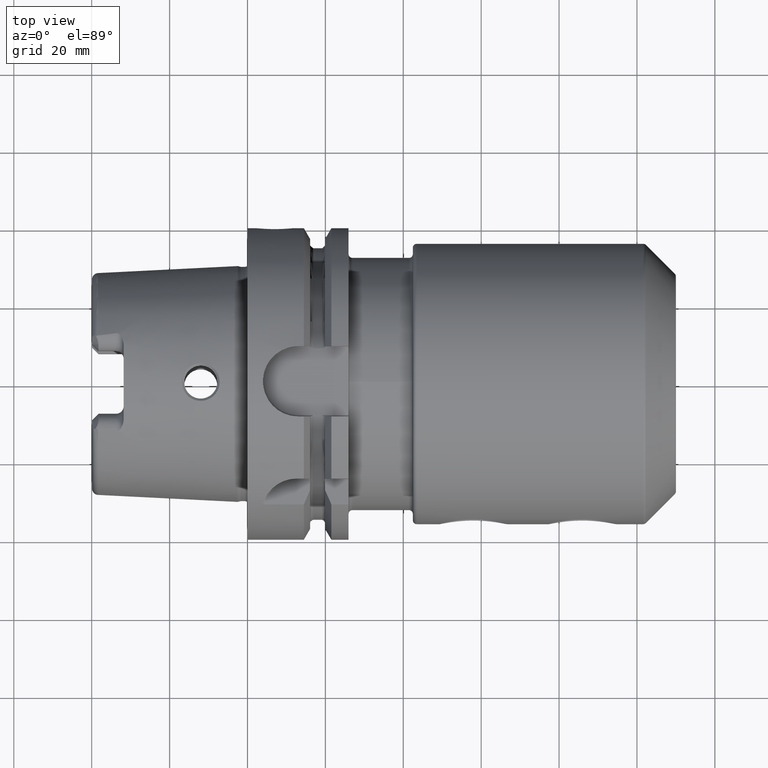
[diagram: clean part render]
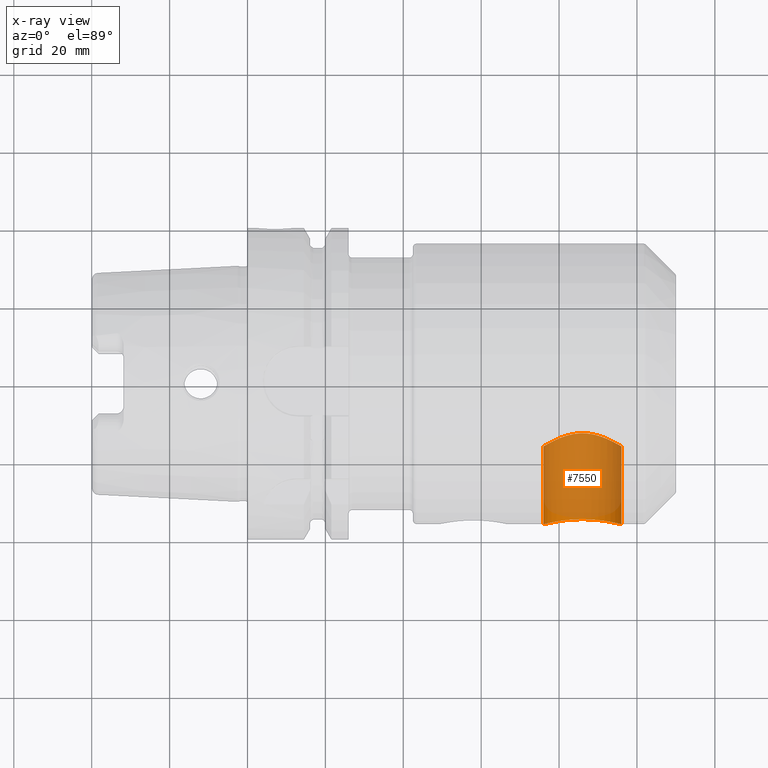
[diagram: x-ray — body ghosted, one internal face saturated and labeled with its STEP entity id]
A machine part, top view, then the same camera in x-ray: the body is ghosted and one INTERNAL B-rep face — a face not visible from any outside direction — is saturated and labeled: STEP entity #7550.
In plain terms, the highlighted cylindrical surface (partial cylindrical patch) has radius 10 mm, axis along (0, -1, 0).
Its self-contained STEP definition (entity closure, byte-faithful):
#7387=CARTESIAN_POINT('',(7.6E1,-1.6E1,0.E0));
#7388=CARTESIAN_POINT('',(7.6E1,-1.6E1,-3.290220032085E-1));
#7389=CARTESIAN_POINT('',(7.603247578494E1,-1.597967069629E1,
-9.908654105462E-1));
#7390=CARTESIAN_POINT('',(7.618178329850E1,-1.588677479833E1,
-1.985415076211E0));
#7391=CARTESIAN_POINT('',(7.643287025851E1,-1.573247899593E1,
-2.970226141236E0));
#7392=CARTESIAN_POINT('',(7.679224641176E1,-1.551601032986E1,
-3.947761893632E0));
#7393=CARTESIAN_POINT('',(7.726095370771E1,-1.524169636864E1,
-4.900726120577E0));
#7394=CARTESIAN_POINT('',(7.784854396253E1,-1.491140823797E1,
-5.827888174198E0));
#7395=CARTESIAN_POINT('',(7.854998298128E1,-1.453828805123E1,
-6.702745995450E0));
#7396=CARTESIAN_POINT('',(7.936410176968E1,-1.413657619629E1,
-7.510371533480E0));
#7397=CARTESIAN_POINT('',(8.026384086702E1,-1.373553773763E1,
-8.217367590914E0));
#7398=CARTESIAN_POINT('',(8.121467271895E1,-1.336526883823E1,
-8.803361801091E0));
#7399=CARTESIAN_POINT('',(8.218162930958E1,-1.304957792752E1,
-9.262152734489E0));
#7400=CARTESIAN_POINT('',(8.315412987133E1,-1.279855554913E1,
-9.604096597368E0));
#7401=CARTESIAN_POINT('',(8.411147945155E1,-1.262024092686E1,
-9.835973769097E0));
#7402=CARTESIAN_POINT('',(8.506100866577E1,-1.251343320771E1,
-9.970836868146E0));
#7403=CARTESIAN_POINT('',(8.599992169187E1,-1.247827906907E1,
-1.001457947697E1));
#7404=CARTESIAN_POINT('',(8.693891575312E1,-1.251342649782E1,
-9.970845222728E0));
#7405=CARTESIAN_POINT('',(8.788841158636E1,-1.262022511425E1,
-9.835994012111E0));
#7406=CARTESIAN_POINT('',(8.884578065962E1,-1.279853561482E1,
-9.604122910628E0));
#7407=CARTESIAN_POINT('',(8.981824825805E1,-1.304954245787E1,
-9.262202336255E0));
#7408=CARTESIAN_POINT('',(9.078522536853E1,-1.336523157008E1,
-8.803418391004E0));
#7409=CARTESIAN_POINT('',(9.173608150701E1,-1.373550496685E1,
-8.217422574302E0));
#7410=CARTESIAN_POINT('',(9.263582772264E1,-1.413654324717E1,
-7.510432440835E0));
#7411=CARTESIAN_POINT('',(9.344992932654E1,-1.453824308106E1,
-6.702842673073E0));
#7412=CARTESIAN_POINT('',(9.415139115601E1,-1.491137248796E1,
-5.827980448527E0));
#7413=CARTESIAN_POINT('',(9.473899506629E1,-1.524166692940E1,
-4.900817177442E0));
#7414=CARTESIAN_POINT('',(9.520771566924E1,-1.551598770261E1,
-3.947853324981E0));
#7415=CARTESIAN_POINT('',(9.556711431751E1,-1.573246955794E1,
-2.970278095690E0));
#7416=CARTESIAN_POINT('',(9.581820613148E1,-1.588676825498E1,
-1.985470205205E0));
#7417=CARTESIAN_POINT('',(9.596752430993E1,-1.597967074311E1,
-9.908775644019E-1));
#7418=CARTESIAN_POINT('',(9.6E1,-1.6E1,-3.290254135847E-1));
#7419=CARTESIAN_POINT('',(9.6E1,-1.6E1,0.E0));
#7421=CARTESIAN_POINT('',(9.6E1,-3.600002362864E1,0.E0));
#7422=CARTESIAN_POINT('',(9.6E1,-3.600002362864E1,-3.710073455499E-1));
#7423=CARTESIAN_POINT('',(9.595862834314E1,-3.598846436973E1,
-1.112183568466E0));
#7424=CARTESIAN_POINT('',(9.577451641163E1,-3.593777552391E1,
-2.206446837386E0));
#7425=CARTESIAN_POINT('',(9.547061936363E1,-3.585599566045E1,
-3.273902213570E0));
#7426=CARTESIAN_POINT('',(9.504923329602E1,-3.574657779310E1,
-4.304162735973E0));
#7427=CARTESIAN_POINT('',(9.451225172112E1,-3.561386862175E1,
-5.288291063959E0));
#7428=CARTESIAN_POINT('',(9.385907444569E1,-3.546275042245E1,
-6.218406402814E0));
#7429=CARTESIAN_POINT('',(9.310178121982E1,-3.530198241983E1,
-7.070681659982E0));
#7430=CARTESIAN_POINT('',(9.225897275570E1,-3.514147786015E1,
-7.826278164528E0));
#7431=CARTESIAN_POINT('',(9.133514512962E1,-3.498800964195E1,
-8.483441251710E0));
#7432=CARTESIAN_POINT('',(9.033309739482E1,-3.484860459292E1,
-9.036667561244E0));
#7433=CARTESIAN_POINT('',(8.927826795075E1,-3.473281455768E1,
-9.469937711672E0));
#7434=CARTESIAN_POINT('',(8.819810486913E1,-3.464733670563E1,
-9.776636690401E0));
#7435=CARTESIAN_POINT('',(8.710227438734E1,-3.459495413213E1,
-9.959599073805E0));
#7436=CARTESIAN_POINT('',(8.599758508358E1,-3.457733423649E1,
-1.002033221031E1));
#7437=CARTESIAN_POINT('',(8.489296691711E1,-3.459510701232E1,
-9.959070352528E0));
#7438=CARTESIAN_POINT('',(8.379718832664E1,-3.464763612809E1,
-9.775580280357E0));
#7439=CARTESIAN_POINT('',(8.271706374735E1,-3.473325599614E1,
-9.468326578981E0));
#7440=CARTESIAN_POINT('',(8.166230275127E1,-3.484917838174E1,
-9.034465679396E0));
#7441=CARTESIAN_POINT('',(8.066049664170E1,-3.498867767081E1,
-8.480698169695E0));
#7442=CARTESIAN_POINT('',(7.973713082891E1,-3.514217740503E1,
-7.823143115017E0));
#7443=CARTESIAN_POINT('',(7.889511720104E1,-3.530261301792E1,
-7.067526436061E0));
#7444=CARTESIAN_POINT('',(7.813870958455E1,-3.546324723086E1,
-6.215548980105E0));
#7445=CARTESIAN_POINT('',(7.748637569003E1,-3.561420070498E1,
-5.286014662140E0));
#7446=CARTESIAN_POINT('',(7.695005085569E1,-3.574676142806E1,
-4.302572846920E0));
#7447=CARTESIAN_POINT('',(7.652916690562E1,-3.585605324762E1,
-3.273184058826E0));
#7448=CARTESIAN_POINT('',(7.622549301778E1,-3.593777314188E1,
-2.206392960708E0));
#7449=CARTESIAN_POINT('',(7.604141320044E1,-3.598845281493E1,
-1.112521528879E0));
#7450=CARTESIAN_POINT('',(7.6E1,-3.600002366874E1,-3.711793850860E-1));
#7451=CARTESIAN_POINT('',(7.6E1,-3.600002366874E1,0.E0));
#7453=DIRECTION('',(0.E0,1.E0,0.E0));
#7454=VECTOR('',#7453,2.000002366874E1);
#7455=CARTESIAN_POINT('',(7.6E1,-3.600002366874E1,0.E0));
#7456=LINE('',#7455,#7454);
#7489=DIRECTION('',(0.E0,1.E0,0.E0));
#7490=VECTOR('',#7489,2.000002362864E1);
#7491=CARTESIAN_POINT('',(9.6E1,-3.600002362864E1,0.E0));
#7492=LINE('',#7491,#7490);
#7527=CARTESIAN_POINT('',(7.6E1,-3.600002366874E1,0.E0));
#7528=CARTESIAN_POINT('',(7.6E1,-1.6E1,0.E0));
#7529=VERTEX_POINT('',#7527);
#7530=VERTEX_POINT('',#7528);
#7531=CARTESIAN_POINT('',(9.6E1,-3.600002362864E1,0.E0));
#7532=CARTESIAN_POINT('',(9.6E1,-1.6E1,0.E0));
#7533=VERTEX_POINT('',#7531);
#7534=VERTEX_POINT('',#7532);
#7535=CARTESIAN_POINT('',(8.6E1,7.320406937316E0,0.E0));
#7536=DIRECTION('',(0.E0,-1.E0,0.E0));
#7537=DIRECTION('',(-1.E0,0.E0,0.E0));
#7538=AXIS2_PLACEMENT_3D('',#7535,#7536,#7537);
#7539=CYLINDRICAL_SURFACE('',#7538,1.E1);
#7541=ORIENTED_EDGE('',*,*,#7540,.T.);
#7543=ORIENTED_EDGE('',*,*,#7542,.T.);
#7545=ORIENTED_EDGE('',*,*,#7544,.F.);
#7547=ORIENTED_EDGE('',*,*,#7546,.T.);
#7548=EDGE_LOOP('',(#7541,#7543,#7545,#7547));
#7549=FACE_OUTER_BOUND('',#7548,.F.);
#7550=ADVANCED_FACE('',(#7549),#7539,.F.);
#7420=B_SPLINE_CURVE_WITH_KNOTS('',3,(#7387,#7388,#7389,#7390,#7391,#7392,#7393,
#7394,#7395,#7396,#7397,#7398,#7399,#7400,#7401,#7402,#7403,#7404,#7405,#7406,
#7407,#7408,#7409,#7410,#7411,#7412,#7413,#7414,#7415,#7416,#7417,#7418,#7419),
.UNSPECIFIED.,.F.,.F.,(4,1,1,1,1,1,1,1,1,1,1,1,1,1,1,1,1,1,1,1,1,1,1,1,1,1,1,1,
1,1,4),(0.E0,3.333333333333E-2,6.666666666667E-2,1.E-1,1.333333333333E-1,
1.666666666667E-1,2.E-1,2.333333333333E-1,2.666666666667E-1,3.E-1,
3.333333333333E-1,3.666666666667E-1,4.E-1,4.333333333333E-1,4.666666666667E-1,
5.E-1,5.333333333333E-1,5.666666666667E-1,6.E-1,6.333333333333E-1,
6.666666666667E-1,7.E-1,7.333333333333E-1,7.666666666667E-1,8.E-1,
8.333333333333E-1,8.666666666667E-1,9.E-1,9.333333333333E-1,9.666666666667E-1,
1.E0),.UNSPECIFIED.);
#7452=B_SPLINE_CURVE_WITH_KNOTS('',3,(#7421,#7422,#7423,#7424,#7425,#7426,#7427,
#7428,#7429,#7430,#7431,#7432,#7433,#7434,#7435,#7436,#7437,#7438,#7439,#7440,
#7441,#7442,#7443,#7444,#7445,#7446,#7447,#7448,#7449,#7450,#7451),
.UNSPECIFIED.,.F.,.F.,(4,1,1,1,1,1,1,1,1,1,1,1,1,1,1,1,1,1,1,1,1,1,1,1,1,1,1,1,
4),(0.E0,3.571428571429E-2,7.142857142857E-2,1.071428571429E-1,
1.428571428571E-1,1.785714285714E-1,2.142857142857E-1,2.5E-1,2.857142857143E-1,
3.214285714286E-1,3.571428571429E-1,3.928571428571E-1,4.285714285714E-1,
4.642857142857E-1,5.E-1,5.357142857143E-1,5.714285714286E-1,6.071428571429E-1,
6.428571428571E-1,6.785714285714E-1,7.142857142857E-1,7.5E-1,7.857142857143E-1,
8.214285714286E-1,8.571428571429E-1,8.928571428571E-1,9.285714285714E-1,
9.642857142857E-1,1.E0),.UNSPECIFIED.);
#7540=EDGE_CURVE('',#7529,#7530,#7456,.T.);
#7542=EDGE_CURVE('',#7530,#7534,#7420,.T.);
#7544=EDGE_CURVE('',#7533,#7534,#7492,.T.);
#7546=EDGE_CURVE('',#7533,#7529,#7452,.T.);